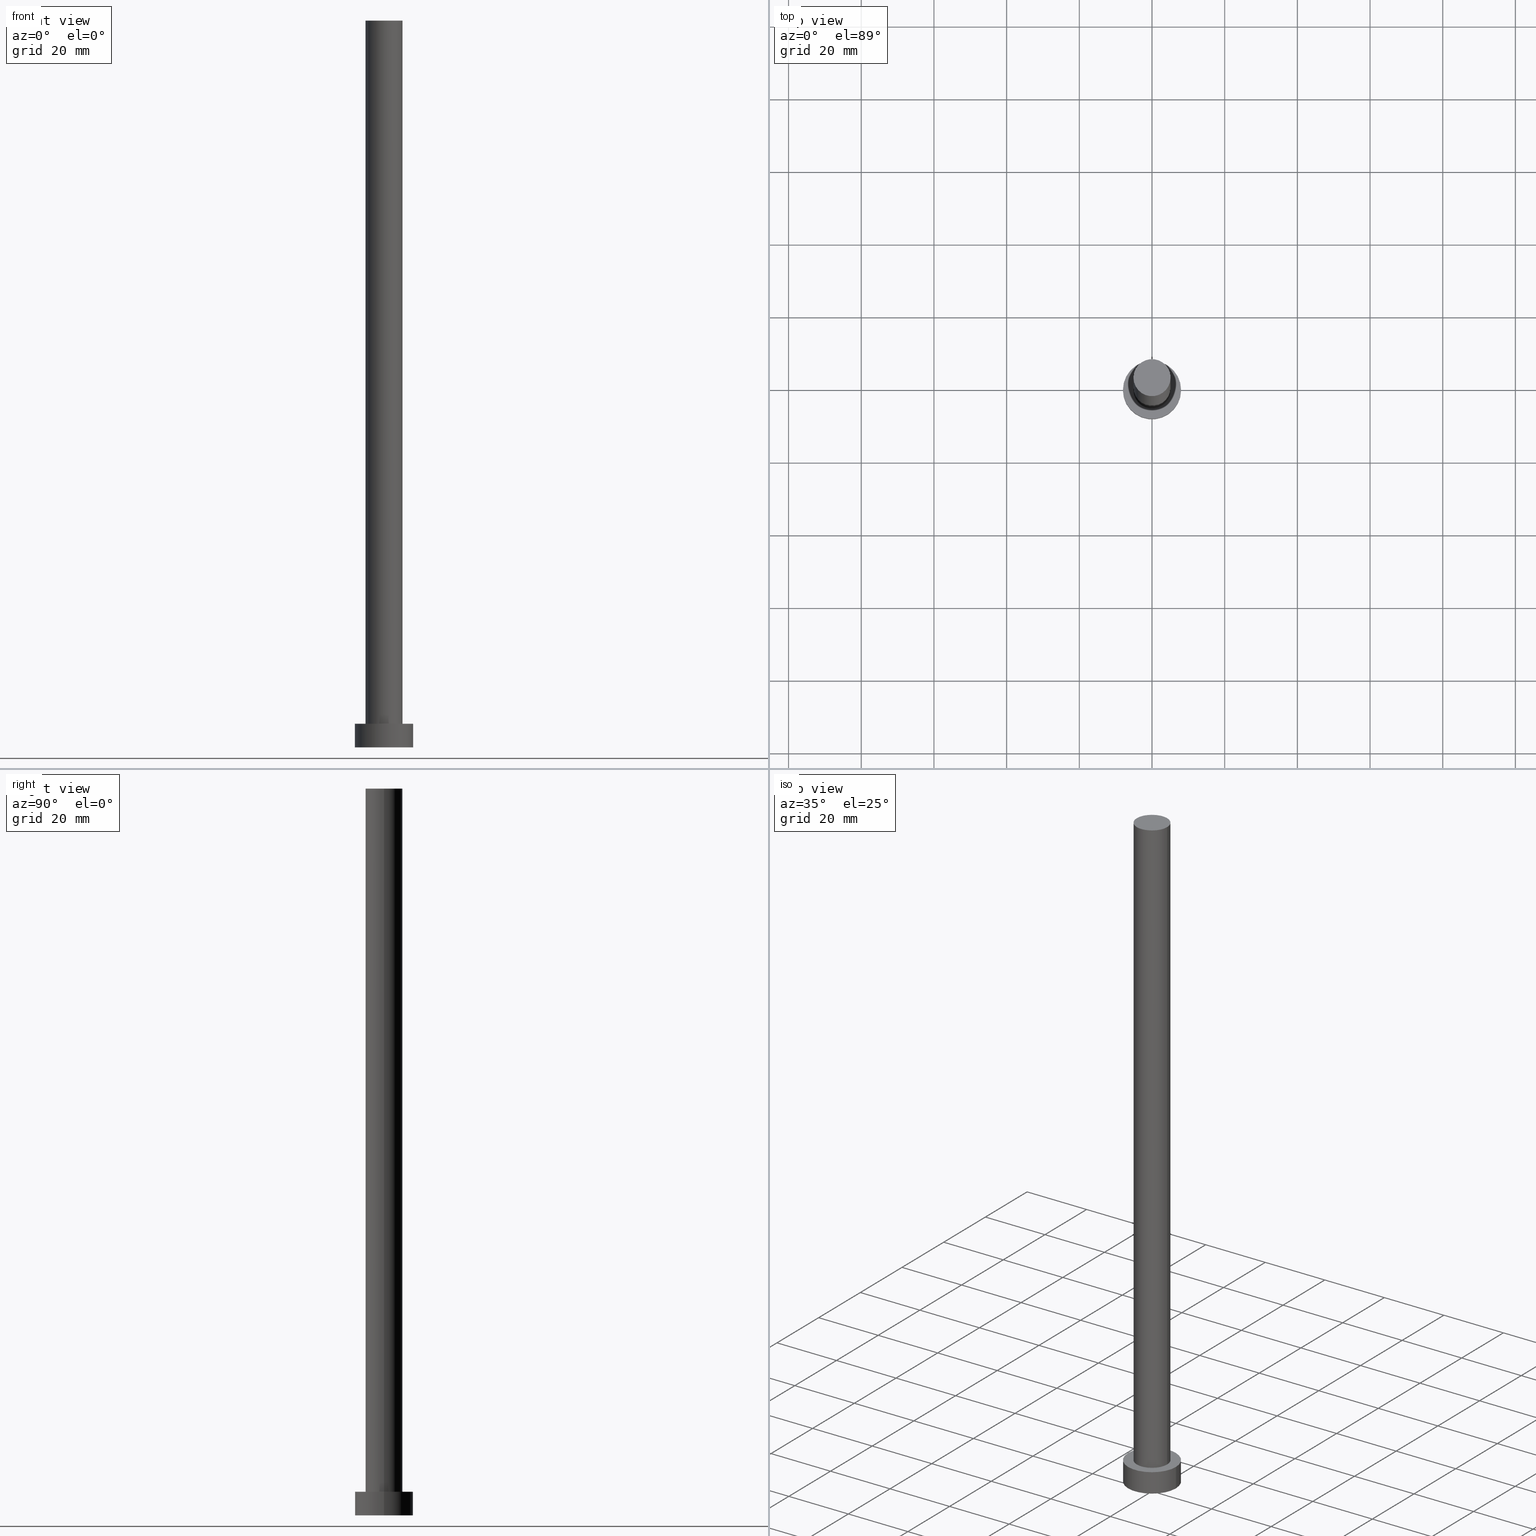
[diagram: canonical four-view strip — front | top / right | iso, engineering-drawing reading convention]
A machine part, canonical four-view strip (front | top / right | iso — engineering-drawing reading convention). The complete STEP part file that produces these views, byte-faithful:
ISO-10303-21;
HEADER;
FILE_DESCRIPTION (( 'STEP AP203' ),
    '1' );
FILE_NAME ('9cf5.STEP',
    '2023-02-13T13:06:56',
    ( '' ),
    ( '' ),
    'SwSTEP 2.0',
    'SolidWorks 2019',
    '' );
FILE_SCHEMA (( 'CONFIG_CONTROL_DESIGN' ));
ENDSEC;

DATA;
#1 = AXIS2_PLACEMENT_3D ( 'NONE', #116, #217, #244 ) ;
#2 = CARTESIAN_POINT ( 'NONE',  ( 0.000000000000000000, 0.000000000000000000, 6.500000000000000000 ) ) ;
#3 = AXIS2_PLACEMENT_3D ( 'NONE', #119, #65, #142 ) ;
#4 = COORDINATED_UNIVERSAL_TIME_OFFSET ( 1, 0, .AHEAD. ) ;
#5 = CARTESIAN_POINT ( 'NONE',  ( 8.000000000000000000, 9.797174393178823685E-16, 6.500000000000000000 ) ) ;
#6 = AXIS2_PLACEMENT_3D ( 'NONE', #141, #210, #88 ) ;
#7 = PERSON_AND_ORGANIZATION_ROLE ( 'creator' ) ;
#8 = EDGE_CURVE ( 'NONE', #29, #190, #60, .T. ) ;
#9 = ORIENTED_EDGE ( 'NONE', *, *, #104, .T. ) ;
#10 = CALENDAR_DATE ( 2023, 13, 2 ) ;
#11 = DIRECTION ( 'NONE',  ( 0.000000000000000000, 0.000000000000000000, 1.000000000000000000 ) ) ;
#12 = DIRECTION ( 'NONE',  ( 0.000000000000000000, 0.000000000000000000, 1.000000000000000000 ) ) ;
#13 =( GEOMETRIC_REPRESENTATION_CONTEXT ( 3 ) GLOBAL_UNCERTAINTY_ASSIGNED_CONTEXT ( ( #59 ) ) GLOBAL_UNIT_ASSIGNED_CONTEXT ( ( #105, #67, #96 ) ) REPRESENTATION_CONTEXT ( 'NONE', 'WORKASPACE' ) );
#14 = CC_DESIGN_DATE_AND_TIME_ASSIGNMENT ( #81, #155, ( #36 ) ) ;
#15 = CARTESIAN_POINT ( 'NONE',  ( 0.000000000000000000, 0.000000000000000000, 200.0000000000000000 ) ) ;
#16 = DIRECTION ( 'NONE',  ( -0.000000000000000000, -0.000000000000000000, -1.000000000000000000 ) ) ;
#17 = DIRECTION ( 'NONE',  ( 1.000000000000000000, 0.000000000000000000, 0.000000000000000000 ) ) ;
#18 = VECTOR ( 'NONE', #221, 1000.000000000000000 ) ;
#19 = DIRECTION ( 'NONE',  ( 1.000000000000000000, 0.000000000000000000, 0.000000000000000000 ) ) ;
#20 = CC_DESIGN_PERSON_AND_ORGANIZATION_ASSIGNMENT ( #131, #55, ( #162 ) ) ;
#21 = FACE_BOUND ( 'NONE', #73, .T. ) ;
#22 = ORIENTED_EDGE ( 'NONE', *, *, #233, .F. ) ;
#23 = AXIS2_PLACEMENT_3D ( 'NONE', #120, #255, #19 ) ;
#24 = EDGE_CURVE ( 'NONE', #190, #143, #227, .T. ) ;
#25 = APPLICATION_CONTEXT ( 'configuration controlled 3d designs of mechanical parts and assemblies' ) ;
#26 = SECURITY_CLASSIFICATION_LEVEL ( 'unclassified' ) ;
#27 = CC_DESIGN_PERSON_AND_ORGANIZATION_ASSIGNMENT ( #153, #223, ( #144 ) ) ;
#28 = APPROVAL_ROLE ( '' ) ;
#29 = VERTEX_POINT ( 'NONE', #5 ) ;
#30 = LOCAL_TIME ( 14, 6, 56.00000000000000000, #224 ) ;
#31 = APPLICATION_PROTOCOL_DEFINITION ( 'international standard', 'config_control_design', 1994, #25 ) ;
#32 = ORIENTED_EDGE ( 'NONE', *, *, #195, .T. ) ;
#33 = PRODUCT_DEFINITION_SHAPE ( 'NONE', 'NONE',  #36 ) ;
#34 = ORIENTED_EDGE ( 'NONE', *, *, #207, .F. ) ;
#35 = FACE_OUTER_BOUND ( 'NONE', #50, .T. ) ;
#36 = PRODUCT_DEFINITION ( 'NEZN�M�', '', #162, #138 ) ;
#37 = CC_DESIGN_APPROVAL ( #157, ( #36 ) ) ;
#38 = PERSON ( 'NEUR�EN�', 'NEUR�EN�', 'NEUR�EN�', ('NEUR�EN�'), ('NEUR�EN�'), ('NEUR�EN�') ) ;
#39 = CARTESIAN_POINT ( 'NONE',  ( 8.000000000000000000, 9.797174393178823685E-16, 0.000000000000000000 ) ) ;
#40 = CARTESIAN_POINT ( 'NONE',  ( 0.000000000000000000, 0.000000000000000000, 0.000000000000000000 ) ) ;
#41 = APPLICATION_CONTEXT ( 'configuration controlled 3d designs of mechanical parts and assemblies' ) ;
#42 = LINE ( 'NONE', #147, #254 ) ;
#43 = ORIENTED_EDGE ( 'NONE', *, *, #192, .F. ) ;
#44 = AXIS2_PLACEMENT_3D ( 'NONE', #245, #209, #80 ) ;
#45 = ORGANIZATION ( 'NEUR�EN�', 'NEUR�EN�', '' ) ;
#46 = ORIENTED_EDGE ( 'NONE', *, *, #63, .T. ) ;
#47 = DIRECTION ( 'NONE',  ( -1.000000000000000000, 0.000000000000000000, 0.000000000000000000 ) ) ;
#48 = ADVANCED_FACE ( 'NONE', ( #35 ), #170, .T. ) ;
#49 = FACE_OUTER_BOUND ( 'NONE', #62, .T. ) ;
#50 = EDGE_LOOP ( 'NONE', ( #197, #125, #46, #32 ) ) ;
#51 = AXIS2_PLACEMENT_3D ( 'NONE', #173, #11, #130 ) ;
#52 = AXIS2_PLACEMENT_3D ( 'NONE', #40, #232, #231 ) ;
#53 = APPROVAL_STATUS ( 'not_yet_approved' ) ;
#54 = CARTESIAN_POINT ( 'NONE',  ( -5.100000000000001421, 0.000000000000000000, 200.0000000000000000 ) ) ;
#55 = PERSON_AND_ORGANIZATION_ROLE ( 'creator' ) ;
#56 = DIRECTION ( 'NONE',  ( 0.000000000000000000, 0.000000000000000000, 1.000000000000000000 ) ) ;
#57 = PERSON_AND_ORGANIZATION ( #38, #45 ) ;
#58 = VECTOR ( 'NONE', #168, 1000.000000000000000 ) ;
#59 = UNCERTAINTY_MEASURE_WITH_UNIT (LENGTH_MEASURE( 1.000000000000000082E-05 ), #105, 'distance_accuracy_value', 'NONE');
#60 = LINE ( 'NONE', #110, #95 ) ;
#61 = COORDINATED_UNIVERSAL_TIME_OFFSET ( 1, 0, .AHEAD. ) ;
#62 = EDGE_LOOP ( 'NONE', ( #9, #94 ) ) ;
#63 = EDGE_CURVE ( 'NONE', #132, #143, #219, .T. ) ;
#64 = CARTESIAN_POINT ( 'NONE',  ( 5.100000000000001421, 6.245698675651502811E-16, 200.0000000000000000 ) ) ;
#65 = DIRECTION ( 'NONE',  ( 0.000000000000000000, 0.000000000000000000, 1.000000000000000000 ) ) ;
#66 = DIRECTION ( 'NONE',  ( 0.000000000000000000, 0.000000000000000000, 1.000000000000000000 ) ) ;
#67 =( NAMED_UNIT ( * ) PLANE_ANGLE_UNIT ( ) SI_UNIT ( $, .RADIAN. ) );
#68 = CC_DESIGN_PERSON_AND_ORGANIZATION_ASSIGNMENT ( #57, #7, ( #36 ) ) ;
#69 = ORIENTED_EDGE ( 'NONE', *, *, #114, .F. ) ;
#70 = LOCAL_TIME ( 14, 6, 56.00000000000000000, #4 ) ;
#71 = EDGE_LOOP ( 'NONE', ( #34, #121, #150, #22 ) ) ;
#72 = ORIENTED_EDGE ( 'NONE', *, *, #8, .T. ) ;
#73 = EDGE_LOOP ( 'NONE', ( #149, #43 ) ) ;
#74 = CIRCLE ( 'NONE', #82, 5.100000000000001421 ) ;
#75 = DATE_AND_TIME ( #10, #182 ) ;
#76 = VERTEX_POINT ( 'NONE', #54 ) ;
#77 = PERSON_AND_ORGANIZATION_ROLE ( 'design_supplier' ) ;
#78 = ORIENTED_EDGE ( 'NONE', *, *, #63, .F. ) ;
#79 = PERSON_AND_ORGANIZATION_ROLE ( 'design_owner' ) ;
#80 = DIRECTION ( 'NONE',  ( 1.000000000000000000, 0.000000000000000000, 0.000000000000000000 ) ) ;
#81 = DATE_AND_TIME ( #109, #30 ) ;
#82 = AXIS2_PLACEMENT_3D ( 'NONE', #160, #66, #102 ) ;
#83 = FACE_OUTER_BOUND ( 'NONE', #250, .T. ) ;
#84 = APPROVAL_DATE_TIME ( #198, #139 ) ;
#85 = DIRECTION ( 'NONE',  ( -0.000000000000000000, -0.000000000000000000, -1.000000000000000000 ) ) ;
#86 = CC_DESIGN_APPROVAL ( #252, ( #144 ) ) ;
#87 = DIRECTION ( 'NONE',  ( -1.000000000000000000, 0.000000000000000000, 0.000000000000000000 ) ) ;
#88 = DIRECTION ( 'NONE',  ( 1.000000000000000000, 0.000000000000000000, 0.000000000000000000 ) ) ;
#89 = CYLINDRICAL_SURFACE ( 'NONE', #99, 5.100000000000001421 ) ;
#90 = LOCAL_TIME ( 14, 6, 56.00000000000000000, #113 ) ;
#91 = ADVANCED_FACE ( 'NONE', ( #185 ), #115, .F. ) ;
#92 = DIRECTION ( 'NONE',  ( 1.000000000000000000, 0.000000000000000000, -0.000000000000000000 ) ) ;
#93 = CALENDAR_DATE ( 2023, 13, 2 ) ;
#94 = ORIENTED_EDGE ( 'NONE', *, *, #212, .T. ) ;
#95 = VECTOR ( 'NONE', #85, 1000.000000000000000 ) ;
#96 =( NAMED_UNIT ( * ) SI_UNIT ( $, .STERADIAN. ) SOLID_ANGLE_UNIT ( ) );
#97 = APPROVAL_DATE_TIME ( #135, #157 ) ;
#98 = ORIENTED_EDGE ( 'NONE', *, *, #188, .T. ) ;
#99 = AXIS2_PLACEMENT_3D ( 'NONE', #15, #253, #87 ) ;
#100 = CIRCLE ( 'NONE', #3, 8.000000000000000000 ) ;
#101 = CARTESIAN_POINT ( 'NONE',  ( -8.000000000000000000, 0.000000000000000000, 0.000000000000000000 ) ) ;
#102 = DIRECTION ( 'NONE',  ( 1.000000000000000000, 0.000000000000000000, 0.000000000000000000 ) ) ;
#103 = PRODUCT_RELATED_PRODUCT_CATEGORY ( 'detail', '', ( #165 ) ) ;
#104 = EDGE_CURVE ( 'NONE', #132, #29, #203, .T. ) ;
#105 =( LENGTH_UNIT ( ) NAMED_UNIT ( * ) SI_UNIT ( .MILLI., .METRE. ) );
#106 = ORIENTED_EDGE ( 'NONE', *, *, #233, .T. ) ;
#107 = PLANE ( 'NONE',  #189 ) ;
#108 = LOCAL_TIME ( 14, 6, 56.00000000000000000, #180 ) ;
#109 = CALENDAR_DATE ( 2023, 13, 2 ) ;
#110 = CARTESIAN_POINT ( 'NONE',  ( 8.000000000000000000, 9.797174393178823685E-16, 6.500000000000000000 ) ) ;
#111 = AXIS2_PLACEMENT_3D ( 'NONE', #247, #56, #134 ) ;
#112 = EDGE_LOOP ( 'NONE', ( #177, #137 ) ) ;
#113 = COORDINATED_UNIVERSAL_TIME_OFFSET ( 1, 0, .AHEAD. ) ;
#114 = EDGE_CURVE ( 'NONE', #181, #238, #200, .T. ) ;
#115 = PLANE ( 'NONE',  #51 ) ;
#116 = CARTESIAN_POINT ( 'NONE',  ( 0.000000000000000000, 0.000000000000000000, 6.500000000000000000 ) ) ;
#117 = CIRCLE ( 'NONE', #23, 5.100000000000001421 ) ;
#118 = CARTESIAN_POINT ( 'NONE',  ( 0.000000000000000000, 0.000000000000000000, 6.500000000000000000 ) ) ;
#119 = CARTESIAN_POINT ( 'NONE',  ( 0.000000000000000000, 0.000000000000000000, 6.500000000000000000 ) ) ;
#120 = CARTESIAN_POINT ( 'NONE',  ( 0.000000000000000000, 0.000000000000000000, 6.500000000000000000 ) ) ;
#121 = ORIENTED_EDGE ( 'NONE', *, *, #114, .T. ) ;
#122 = CC_DESIGN_APPROVAL ( #139, ( #162 ) ) ;
#123 = ORIENTED_EDGE ( 'NONE', *, *, #24, .T. ) ;
#124 = DIRECTION ( 'NONE',  ( -0.000000000000000000, -0.000000000000000000, -1.000000000000000000 ) ) ;
#125 = ORIENTED_EDGE ( 'NONE', *, *, #104, .F. ) ;
#126 = CARTESIAN_POINT ( 'NONE',  ( 0.000000000000000000, 0.000000000000000000, 200.0000000000000000 ) ) ;
#127 = DIRECTION ( 'NONE',  ( 0.000000000000000000, 0.000000000000000000, 1.000000000000000000 ) ) ;
#128 = ADVANCED_FACE ( 'NONE', ( #83 ), #187, .T. ) ;
#129 = APPROVAL_ROLE ( '' ) ;
#130 = DIRECTION ( 'NONE',  ( 1.000000000000000000, 0.000000000000000000, -0.000000000000000000 ) ) ;
#131 = PERSON_AND_ORGANIZATION ( #38, #45 ) ;
#132 = VERTEX_POINT ( 'NONE', #208 ) ;
#133 = APPROVAL_ROLE ( '' ) ;
#134 = DIRECTION ( 'NONE',  ( 1.000000000000000000, 0.000000000000000000, 0.000000000000000000 ) ) ;
#135 = DATE_AND_TIME ( #220, #90 ) ;
#136 = DIRECTION ( 'NONE',  ( 1.000000000000000000, 0.000000000000000000, -0.000000000000000000 ) ) ;
#137 = ORIENTED_EDGE ( 'NONE', *, *, #24, .F. ) ;
#138 = DESIGN_CONTEXT ( 'detailed design', #41, 'design' ) ;
#139 = APPROVAL ( #246, 'NEUR�EN�' ) ;
#140 = CC_DESIGN_PERSON_AND_ORGANIZATION_ASSIGNMENT ( #184, #77, ( #162 ) ) ;
#141 = CARTESIAN_POINT ( 'NONE',  ( 0.000000000000000000, 0.000000000000000000, 200.0000000000000000 ) ) ;
#142 = DIRECTION ( 'NONE',  ( 1.000000000000000000, 0.000000000000000000, 0.000000000000000000 ) ) ;
#143 = VERTEX_POINT ( 'NONE', #101 ) ;
#144 = SECURITY_CLASSIFICATION ( '', '', #26 ) ;
#145 = CARTESIAN_POINT ( 'NONE',  ( -5.100000000000001421, 0.000000000000000000, 6.500000000000000000 ) ) ;
#146 = ORIENTED_EDGE ( 'NONE', *, *, #188, .F. ) ;
#147 = CARTESIAN_POINT ( 'NONE',  ( -5.100000000000001421, 0.000000000000000000, 200.0000000000000000 ) ) ;
#148 = AXIS2_PLACEMENT_3D ( 'NONE', #169, #127, #172 ) ;
#149 = ORIENTED_EDGE ( 'NONE', *, *, #215, .F. ) ;
#150 = ORIENTED_EDGE ( 'NONE', *, *, #192, .T. ) ;
#151 = PERSON_AND_ORGANIZATION ( #38, #45 ) ;
#152 = CARTESIAN_POINT ( 'NONE',  ( 5.100000000000001421, 6.245698675651502811E-16, 200.0000000000000000 ) ) ;
#153 = PERSON_AND_ORGANIZATION ( #38, #45 ) ;
#154 = CARTESIAN_POINT ( 'NONE',  ( 0.000000000000000000, 0.000000000000000000, 200.0000000000000000 ) ) ;
#155 = DATE_TIME_ROLE ( 'creation_date' ) ;
#156 = ORIENTED_EDGE ( 'NONE', *, *, #207, .T. ) ;
#157 = APPROVAL ( #218, 'NEUR�EN�' ) ;
#158 = FACE_OUTER_BOUND ( 'NONE', #171, .T. ) ;
#159 = CYLINDRICAL_SURFACE ( 'NONE', #161, 8.000000000000000000 ) ;
#160 = CARTESIAN_POINT ( 'NONE',  ( 0.000000000000000000, 0.000000000000000000, 200.0000000000000000 ) ) ;
#161 = AXIS2_PLACEMENT_3D ( 'NONE', #226, #16, #234 ) ;
#162 = PRODUCT_DEFINITION_FORMATION_WITH_SPECIFIED_SOURCE ( 'LIBOVOLN�', '', #165, .NOT_KNOWN. ) ;
#163 = MANIFOLD_SOLID_BREP ( 'P�idat vysunut�m3', #242 ) ;
#164 = CIRCLE ( 'NONE', #6, 5.100000000000001421 ) ;
#165 = PRODUCT ( '9cf5', '9cf5', '', ( #174 ) ) ;
#166 = ADVANCED_FACE ( 'NONE', ( #251 ), #159, .T. ) ;
#167 = DATE_TIME_ROLE ( 'classification_date' ) ;
#168 = DIRECTION ( 'NONE',  ( -0.000000000000000000, -0.000000000000000000, -1.000000000000000000 ) ) ;
#169 = CARTESIAN_POINT ( 'NONE',  ( 0.000000000000000000, 0.000000000000000000, 0.000000000000000000 ) ) ;
#170 = CYLINDRICAL_SURFACE ( 'NONE', #1, 8.000000000000000000 ) ;
#171 = EDGE_LOOP ( 'NONE', ( #69, #146, #106, #205 ) ) ;
#172 = DIRECTION ( 'NONE',  ( 1.000000000000000000, 0.000000000000000000, 0.000000000000000000 ) ) ;
#173 = CARTESIAN_POINT ( 'NONE',  ( 0.000000000000000000, 0.000000000000000000, 0.000000000000000000 ) ) ;
#174 = MECHANICAL_CONTEXT ( 'NONE', #25, 'mechanical' ) ;
#175 = AXIS2_PLACEMENT_3D ( 'NONE', #126, #237, #47 ) ;
#176 = APPROVAL_PERSON_ORGANIZATION ( #241, #252, #129 ) ;
#177 = ORIENTED_EDGE ( 'NONE', *, *, #195, .F. ) ;
#178 = ADVANCED_BREP_SHAPE_REPRESENTATION ( '9cf5', ( #163, #148 ), #13 ) ;
#179 = DIRECTION ( 'NONE',  ( 0.000000000000000000, 0.000000000000000000, 1.000000000000000000 ) ) ;
#180 = COORDINATED_UNIVERSAL_TIME_OFFSET ( 1, 0, .AHEAD. ) ;
#181 = VERTEX_POINT ( 'NONE', #64 ) ;
#182 = LOCAL_TIME ( 14, 6, 56.00000000000000000, #61 ) ;
#183 = ADVANCED_FACE ( 'NONE', ( #158 ), #89, .T. ) ;
#184 = PERSON_AND_ORGANIZATION ( #38, #45 ) ;
#185 = FACE_OUTER_BOUND ( 'NONE', #112, .T. ) ;
#186 = PERSON_AND_ORGANIZATION ( #38, #45 ) ;
#187 = PLANE ( 'NONE',  #214 ) ;
#188 = EDGE_CURVE ( 'NONE', #76, #181, #74, .T. ) ;
#189 = AXIS2_PLACEMENT_3D ( 'NONE', #2, #179, #92 ) ;
#190 = VERTEX_POINT ( 'NONE', #39 ) ;
#191 = DIRECTION ( 'NONE',  ( 0.000000000000000000, 0.000000000000000000, 1.000000000000000000 ) ) ;
#192 = EDGE_CURVE ( 'NONE', #238, #225, #194, .T. ) ;
#193 = CC_DESIGN_PERSON_AND_ORGANIZATION_ASSIGNMENT ( #243, #79, ( #165 ) ) ;
#194 = CIRCLE ( 'NONE', #229, 5.100000000000001421 ) ;
#195 = EDGE_CURVE ( 'NONE', #143, #190, #248, .T. ) ;
#196 = CARTESIAN_POINT ( 'NONE',  ( 5.100000000000001421, 6.245698675651502811E-16, 6.500000000000000000 ) ) ;
#197 = ORIENTED_EDGE ( 'NONE', *, *, #8, .F. ) ;
#198 = DATE_AND_TIME ( #201, #108 ) ;
#199 = SHAPE_DEFINITION_REPRESENTATION ( #33, #178 ) ;
#200 = LINE ( 'NONE', #152, #18 ) ;
#201 = CALENDAR_DATE ( 2023, 13, 2 ) ;
#202 = CARTESIAN_POINT ( 'NONE',  ( -8.000000000000000000, 0.000000000000000000, 6.500000000000000000 ) ) ;
#203 = CIRCLE ( 'NONE', #111, 8.000000000000000000 ) ;
#204 = DATE_AND_TIME ( #93, #70 ) ;
#205 = ORIENTED_EDGE ( 'NONE', *, *, #215, .T. ) ;
#206 = APPROVAL_DATE_TIME ( #75, #252 ) ;
#207 = EDGE_CURVE ( 'NONE', #181, #76, #164, .T. ) ;
#208 = CARTESIAN_POINT ( 'NONE',  ( -8.000000000000000000, 0.000000000000000000, 6.500000000000000000 ) ) ;
#209 = DIRECTION ( 'NONE',  ( 0.000000000000000000, 0.000000000000000000, 1.000000000000000000 ) ) ;
#210 = DIRECTION ( 'NONE',  ( 0.000000000000000000, 0.000000000000000000, 1.000000000000000000 ) ) ;
#211 = CC_DESIGN_DATE_AND_TIME_ASSIGNMENT ( #204, #167, ( #144 ) ) ;
#212 = EDGE_CURVE ( 'NONE', #29, #132, #100, .T. ) ;
#213 = CC_DESIGN_SECURITY_CLASSIFICATION ( #144, ( #162 ) ) ;
#214 = AXIS2_PLACEMENT_3D ( 'NONE', #154, #12, #136 ) ;
#215 = EDGE_CURVE ( 'NONE', #225, #238, #117, .T. ) ;
#216 = EDGE_LOOP ( 'NONE', ( #235, #72, #123, #78 ) ) ;
#217 = DIRECTION ( 'NONE',  ( -0.000000000000000000, -0.000000000000000000, -1.000000000000000000 ) ) ;
#218 = APPROVAL_STATUS ( 'not_yet_approved' ) ;
#219 = LINE ( 'NONE', #202, #58 ) ;
#220 = CALENDAR_DATE ( 2023, 13, 2 ) ;
#221 = DIRECTION ( 'NONE',  ( -0.000000000000000000, -0.000000000000000000, -1.000000000000000000 ) ) ;
#222 = APPROVAL_PERSON_ORGANIZATION ( #186, #139, #133 ) ;
#223 = PERSON_AND_ORGANIZATION_ROLE ( 'classification_officer' ) ;
#224 = COORDINATED_UNIVERSAL_TIME_OFFSET ( 1, 0, .AHEAD. ) ;
#225 = VERTEX_POINT ( 'NONE', #145 ) ;
#226 = CARTESIAN_POINT ( 'NONE',  ( 0.000000000000000000, 0.000000000000000000, 6.500000000000000000 ) ) ;
#227 = CIRCLE ( 'NONE', #44, 8.000000000000000000 ) ;
#228 = APPROVAL_PERSON_ORGANIZATION ( #151, #157, #28 ) ;
#229 = AXIS2_PLACEMENT_3D ( 'NONE', #118, #191, #17 ) ;
#230 = ADVANCED_FACE ( 'NONE', ( #239 ), #236, .T. ) ;
#231 = DIRECTION ( 'NONE',  ( 1.000000000000000000, 0.000000000000000000, 0.000000000000000000 ) ) ;
#232 = DIRECTION ( 'NONE',  ( 0.000000000000000000, 0.000000000000000000, 1.000000000000000000 ) ) ;
#233 = EDGE_CURVE ( 'NONE', #76, #225, #42, .T. ) ;
#234 = DIRECTION ( 'NONE',  ( -1.000000000000000000, 0.000000000000000000, 0.000000000000000000 ) ) ;
#235 = ORIENTED_EDGE ( 'NONE', *, *, #212, .F. ) ;
#236 = CYLINDRICAL_SURFACE ( 'NONE', #175, 5.100000000000001421 ) ;
#237 = DIRECTION ( 'NONE',  ( -0.000000000000000000, -0.000000000000000000, -1.000000000000000000 ) ) ;
#238 = VERTEX_POINT ( 'NONE', #196 ) ;
#239 = FACE_OUTER_BOUND ( 'NONE', #71, .T. ) ;
#240 = ADVANCED_FACE ( 'NONE', ( #21, #49 ), #107, .T. ) ;
#241 = PERSON_AND_ORGANIZATION ( #38, #45 ) ;
#242 = CLOSED_SHELL ( 'NONE', ( #230, #166, #48, #240, #91, #183, #128 ) ) ;
#243 = PERSON_AND_ORGANIZATION ( #38, #45 ) ;
#244 = DIRECTION ( 'NONE',  ( -1.000000000000000000, 0.000000000000000000, 0.000000000000000000 ) ) ;
#245 = CARTESIAN_POINT ( 'NONE',  ( 0.000000000000000000, 0.000000000000000000, 0.000000000000000000 ) ) ;
#246 = APPROVAL_STATUS ( 'not_yet_approved' ) ;
#247 = CARTESIAN_POINT ( 'NONE',  ( 0.000000000000000000, 0.000000000000000000, 6.500000000000000000 ) ) ;
#248 = CIRCLE ( 'NONE', #52, 8.000000000000000000 ) ;
#249 = APPLICATION_PROTOCOL_DEFINITION ( 'international standard', 'config_control_design', 1994, #41 ) ;
#250 = EDGE_LOOP ( 'NONE', ( #98, #156 ) ) ;
#251 = FACE_OUTER_BOUND ( 'NONE', #216, .T. ) ;
#252 = APPROVAL ( #53, 'NEUR�EN�' ) ;
#253 = DIRECTION ( 'NONE',  ( -0.000000000000000000, -0.000000000000000000, -1.000000000000000000 ) ) ;
#254 = VECTOR ( 'NONE', #124, 1000.000000000000000 ) ;
#255 = DIRECTION ( 'NONE',  ( 0.000000000000000000, 0.000000000000000000, 1.000000000000000000 ) ) ;
ENDSEC;
END-ISO-10303-21;
